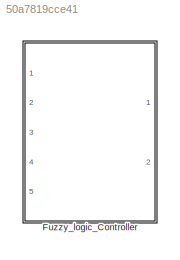
MODEL slx_50a7819cce41
KIND model
CONFIG AbsTol = auto
CONFIG FixedStep = auto
CONFIG MaxStep = auto
CONFIG MinStep = auto
CONFIG RelTol = 1e-3
CONFIG SampleTimeConstraint = Unconstrained
CONFIG Solver = ode45
CONFIG SolverMode = Auto
CONFIG SolverName = ode45
CONFIG StartTime = 0.0
CONFIG StopTime = 10.0
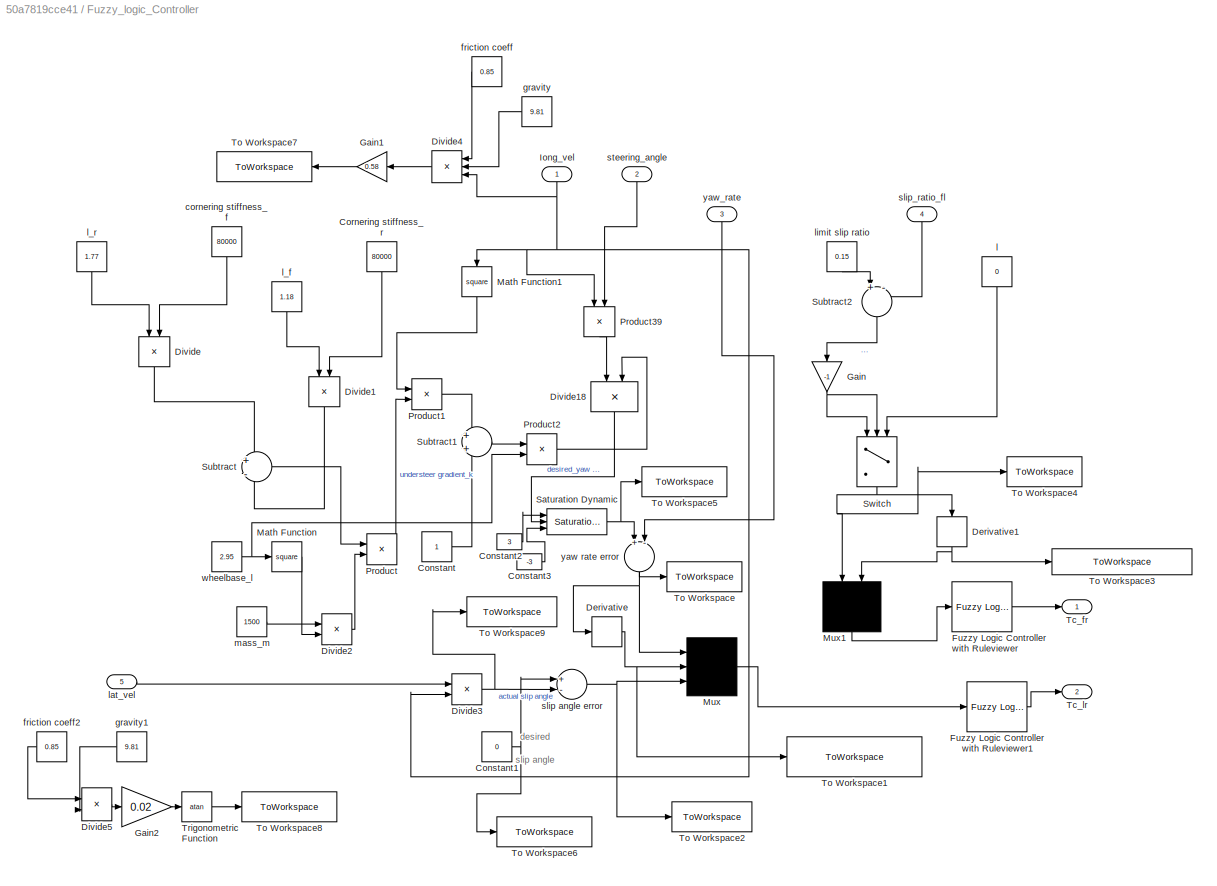
BLOCK [SubSystem] Fuzzy_logic_Controller
  Ports = [5, 2]
  RequestExecContextInheritance = off
BLOCK [Constant] Fuzzy_logic_Controller/Constant
BLOCK [Constant] Fuzzy_logic_Controller/Constant1
  Value = 0
BLOCK [Constant] Fuzzy_logic_Controller/Constant2
  Value = 3
BLOCK [Constant] Fuzzy_logic_Controller/Constant3
  Value = -3
BLOCK [Constant] Fuzzy_logic_Controller/Cornering stiffness_r 
  Value = 80000
BLOCK [Derivative] Fuzzy_logic_Controller/Derivative
BLOCK [Derivative] Fuzzy_logic_Controller/Derivative1
BLOCK [Product] Fuzzy_logic_Controller/Divide
  InputSameDT = off
  Inputs = */
  OutDataTypeStr = Inherit: Inherit via internal rule
  Ports = [2, 1]
  RndMeth = Floor
  SaturateOnIntegerOverflow = off
BLOCK [Product] Fuzzy_logic_Controller/Divide1
  InputSameDT = off
  Inputs = */
  OutDataTypeStr = Inherit: Inherit via internal rule
  Ports = [2, 1]
  RndMeth = Floor
  SaturateOnIntegerOverflow = off
BLOCK [Product] Fuzzy_logic_Controller/Divide18
  InputSameDT = off
  Inputs = */
  OutDataTypeStr = Inherit: Inherit via internal rule
  Ports = [2, 1]
  RndMeth = Floor
  SaturateOnIntegerOverflow = off
BLOCK [Product] Fuzzy_logic_Controller/Divide2
  InputSameDT = off
  Inputs = */
  OutDataTypeStr = Inherit: Inherit via internal rule
  Ports = [2, 1]
  RndMeth = Floor
  SaturateOnIntegerOverflow = off
BLOCK [Product] Fuzzy_logic_Controller/Divide3
  InputSameDT = off
  Inputs = */
  OutDataTypeStr = Inherit: Inherit via internal rule
  Ports = [2, 1]
  RndMeth = Floor
  SaturateOnIntegerOverflow = off
BLOCK [Product] Fuzzy_logic_Controller/Divide4
  InputSameDT = off
  Inputs = **/
  OutDataTypeStr = Inherit: Inherit via internal rule
  Ports = [3, 1]
  RndMeth = Floor
  SaturateOnIntegerOverflow = off
BLOCK [Product] Fuzzy_logic_Controller/Divide5
  InputSameDT = off
  Inputs = **
  OutDataTypeStr = Inherit: Inherit via internal rule
  Ports = [2, 1]
  RndMeth = Floor
  SaturateOnIntegerOverflow = off
BLOCK [Reference] Fuzzy_logic_Controller/Fuzzy Logic Controller with Ruleviewer  REF=fuzblock/Fuzzy Logic   (lib defined in mdl_858b3b3e7478)
Controller 
with Ruleviewer
  Ports = [1, 1]
  SourceBlock = fuzblock/Fuzzy Logic \nController \nwith Ruleviewer
  SourceType = FIS
  Ts = 2
  fismatrix = fuzzy_slip_ratio1
BLOCK [Reference] Fuzzy_logic_Controller/Fuzzy Logic Controller with Ruleviewer1  REF=fuzblock/Fuzzy Logic   (lib defined in mdl_858b3b3e7478)
Controller 
with Ruleviewer
  Ports = [1, 1]
  SourceBlock = fuzblock/Fuzzy Logic \nController \nwith Ruleviewer
  SourceType = FIS
  Ts = 2
  fismatrix = fuzzy_yaw_rate1
BLOCK [Gain] Fuzzy_logic_Controller/Gain
  Gain = -1
  OutDataTypeStr = Inherit: Inherit via internal rule
  ParamDataTypeStr = Inherit: Inherit via internal rule
  SaturateOnIntegerOverflow = off
BLOCK [Gain] Fuzzy_logic_Controller/Gain1
  Gain = 0.58
  OutDataTypeStr = Inherit: Inherit via internal rule
  ParamDataTypeStr = Inherit: Inherit via internal rule
  SaturateOnIntegerOverflow = off
BLOCK [Gain] Fuzzy_logic_Controller/Gain2
  Gain = 0.02
  OutDataTypeStr = Inherit: Inherit via internal rule
  ParamDataTypeStr = Inherit: Inherit via internal rule
  SaturateOnIntegerOverflow = off
BLOCK [Inport] Fuzzy_logic_Controller/Iong_vel
  IconDisplay = Port number
BLOCK [Math] Fuzzy_logic_Controller/Math Function
  Operator = square
  Ports = [1, 1]
BLOCK [Math] Fuzzy_logic_Controller/Math Function1
  Operator = square
  Ports = [1, 1]
BLOCK [Mux] Fuzzy_logic_Controller/Mux
  Inputs = 3
  Ports = [3, 1]
BLOCK [Mux] Fuzzy_logic_Controller/Mux1
  Inputs = 2
  Ports = [2, 1]
BLOCK [Product] Fuzzy_logic_Controller/Product
  InputSameDT = off
  OutDataTypeStr = Inherit: Inherit via internal rule
  Ports = [2, 1]
  RndMeth = Floor
  SaturateOnIntegerOverflow = off
BLOCK [Product] Fuzzy_logic_Controller/Product1
  InputSameDT = off
  OutDataTypeStr = Inherit: Inherit via internal rule
  Ports = [2, 1]
  RndMeth = Floor
  SaturateOnIntegerOverflow = off
BLOCK [Product] Fuzzy_logic_Controller/Product2
  InputSameDT = off
  OutDataTypeStr = Inherit: Inherit via internal rule
  Ports = [2, 1]
  RndMeth = Floor
  SaturateOnIntegerOverflow = off
BLOCK [Product] Fuzzy_logic_Controller/Product39
  InputSameDT = off
  OutDataTypeStr = Inherit: Inherit via internal rule
  Ports = [2, 1]
  RndMeth = Floor
  SaturateOnIntegerOverflow = off
BLOCK [Reference] Fuzzy_logic_Controller/Saturation Dynamic  REF=simulink/Discontinuities/Saturation
Dynamic
  DoSatur = off
  LockScale = off
  OutDataType = fixdt(1, 16)
  OutDataTypeStr = Inherit: Same as second input
  OutMax = 3
  OutMin = -3
  OutScaling = 2^-10
  OutputDataTypeScalingMode = Same as second input
  Ports = [3, 1]
  RndMeth = Floor
  SourceBlock = simulink/Discontinuities/Saturation\nDynamic
  SourceType = Saturation Dynamic
BLOCK [Sum] Fuzzy_logic_Controller/Subtract
  IconShape = round
  InputSameDT = off
  Inputs = +-
  OutDataTypeStr = Inherit: Inherit via internal rule
  Ports = [2, 1]
  SaturateOnIntegerOverflow = off
BLOCK [Sum] Fuzzy_logic_Controller/Subtract1
  IconShape = round
  InputSameDT = off
  OutDataTypeStr = Inherit: Inherit via internal rule
  Ports = [2, 1]
  SaturateOnIntegerOverflow = off
BLOCK [Sum] Fuzzy_logic_Controller/Subtract2
  IconShape = round
  InputSameDT = off
  Inputs = +-
  OutDataTypeStr = Inherit: Inherit via internal rule
  Ports = [2, 1]
  SaturateOnIntegerOverflow = off
BLOCK [Switch] Fuzzy_logic_Controller/Switch
  Criteria = u2 > Threshold
  InputSameDT = off
  SaturateOnIntegerOverflow = off
  Threshold = 0.15
BLOCK [Outport] Fuzzy_logic_Controller/Tc_fr
  IconDisplay = Port number
BLOCK [Outport] Fuzzy_logic_Controller/Tc_lr
  IconDisplay = Port number
  Port = 2
BLOCK [ToWorkspace] Fuzzy_logic_Controller/To Workspace
  FixptAsFi = on
  MaxDataPoints = inf
  Ports = [1]
  SampleTime = 1
  Save2DSignal = 3-D array (concatenate along third dimension)
  SaveFormat = Timeseries
  VariableName = error_yaw_rate
BLOCK [ToWorkspace] Fuzzy_logic_Controller/To Workspace1
  FixptAsFi = on
  MaxDataPoints = inf
  Ports = [1]
  SampleTime = 1
  Save2DSignal = 3-D array (concatenate along third dimension)
  SaveFormat = Timeseries
  VariableName = derivative_error_yaw_rate
BLOCK [ToWorkspace] Fuzzy_logic_Controller/To Workspace2
  FixptAsFi = on
  MaxDataPoints = inf
  Ports = [1]
  SampleTime = 1
  Save2DSignal = 3-D array (concatenate along third dimension)
  SaveFormat = Timeseries
  VariableName = error_slip_angle
BLOCK [ToWorkspace] Fuzzy_logic_Controller/To Workspace3
  FixptAsFi = on
  MaxDataPoints = inf
  Ports = [1]
  SampleTime = 1
  Save2DSignal = 3-D array (concatenate along third dimension)
  SaveFormat = Timeseries
  VariableName = derivative_error_slip_ratio
BLOCK [ToWorkspace] Fuzzy_logic_Controller/To Workspace4
  FixptAsFi = on
  MaxDataPoints = inf
  Ports = [1]
  SampleTime = 1
  Save2DSignal = 3-D array (concatenate along third dimension)
  SaveFormat = Timeseries
  VariableName = error_slip_ratio
BLOCK [ToWorkspace] Fuzzy_logic_Controller/To Workspace5
  FixptAsFi = on
  MaxDataPoints = inf
  Ports = [1]
  SampleTime = 1
  Save2DSignal = 3-D array (concatenate along third dimension)
  SaveFormat = Timeseries
  VariableName = desired_yaw_rate
BLOCK [ToWorkspace] Fuzzy_logic_Controller/To Workspace6
  FixptAsFi = on
  MaxDataPoints = inf
  Ports = [1]
  SampleTime = 1
  Save2DSignal = 3-D array (concatenate along third dimension)
  SaveFormat = Timeseries
  VariableName = desired_slip_angle
BLOCK [ToWorkspace] Fuzzy_logic_Controller/To Workspace7
  FixptAsFi = on
  MaxDataPoints = inf
  Ports = [1]
  SampleTime = 1
  Save2DSignal = 3-D array (concatenate along third dimension)
  SaveFormat = Timeseries
  VariableName = targeted_yaw_rate
BLOCK [ToWorkspace] Fuzzy_logic_Controller/To Workspace8
  FixptAsFi = on
  MaxDataPoints = inf
  Ports = [1]
  SampleTime = 1
  Save2DSignal = 3-D array (concatenate along third dimension)
  SaveFormat = Timeseries
  VariableName = targeted_slip_angle
BLOCK [ToWorkspace] Fuzzy_logic_Controller/To Workspace9
  FixptAsFi = on
  MaxDataPoints = inf
  Ports = [1]
  SampleTime = 1
  Save2DSignal = 3-D array (concatenate along third dimension)
  SaveFormat = Timeseries
  VariableName = vehicle_slip_angle
BLOCK [Trigonometry] Fuzzy_logic_Controller/Trigonometric Function
  Operator = atan
  Ports = [1, 1]
BLOCK [Constant] Fuzzy_logic_Controller/cornering stiffness_f 
  Value = 80000
BLOCK [Constant] Fuzzy_logic_Controller/friction coeff
  Value = 0.85
BLOCK [Constant] Fuzzy_logic_Controller/friction coeff2
  Value = 0.85
BLOCK [Constant] Fuzzy_logic_Controller/gravity
  Value = 9.81
BLOCK [Constant] Fuzzy_logic_Controller/gravity1
  Value = 9.81
BLOCK [Constant] Fuzzy_logic_Controller/l
  Value = 0
BLOCK [Constant] Fuzzy_logic_Controller/l_f 
  Value = 1.18
BLOCK [Constant] Fuzzy_logic_Controller/l_r 
  Value = 1.77
BLOCK [Inport] Fuzzy_logic_Controller/lat_vel
  IconDisplay = Port number
  Port = 5
BLOCK [Constant] Fuzzy_logic_Controller/limit slip ratio
  Value = 0.15
BLOCK [Constant] Fuzzy_logic_Controller/mass_m
  Value = 1500
BLOCK [Sum] Fuzzy_logic_Controller/slip angle error  
  InputSameDT = off
  Inputs = +-
  OutDataTypeStr = Inherit: Inherit via internal rule
  Ports = [2, 1]
  SaturateOnIntegerOverflow = off
BLOCK [Inport] Fuzzy_logic_Controller/slip_ratio_fl
  IconDisplay = Port number
  Port = 4
BLOCK [Inport] Fuzzy_logic_Controller/steering_angle
  IconDisplay = Port number
  Port = 2
BLOCK [Constant] Fuzzy_logic_Controller/wheelbase_l
  Value = 2.95
BLOCK [Sum] Fuzzy_logic_Controller/yaw rate error   
  InputSameDT = off
  Inputs = +-
  OutDataTypeStr = Inherit: Inherit via internal rule
  Ports = [2, 1]
  SaturateOnIntegerOverflow = off
BLOCK [Inport] Fuzzy_logic_Controller/yaw_rate
  IconDisplay = Port number
  Port = 3
ANNOTATION Fuzzy_logic_Controller: desired slip angle
NET Fuzzy_logic_Controller/Constant1:1 -> Fuzzy_logic_Controller/To Workspace6:1, Fuzzy_logic_Controller/slip angle error  :1
LINE Fuzzy_logic_Controller/Constant2:1 -> Fuzzy_logic_Controller/Saturation Dynamic:1
LINE Fuzzy_logic_Controller/Constant3:1 -> Fuzzy_logic_Controller/Saturation Dynamic:3
LINE Fuzzy_logic_Controller/Constant:1 -> Fuzzy_logic_Controller/Subtract1:2
LINE Fuzzy_logic_Controller/Cornering stiffness_r :1 -> Fuzzy_logic_Controller/Divide1:2
NET Fuzzy_logic_Controller/Derivative1:1 -> Fuzzy_logic_Controller/Mux1:2, Fuzzy_logic_Controller/To Workspace3:1
NET Fuzzy_logic_Controller/Derivative:1 -> Fuzzy_logic_Controller/Mux:2, Fuzzy_logic_Controller/To Workspace1:1
LINE Fuzzy_logic_Controller/Divide18:1 -> Fuzzy_logic_Controller/Saturation Dynamic:2
LINE Fuzzy_logic_Controller/Divide1:1 -> Fuzzy_logic_Controller/Subtract:2
LINE Fuzzy_logic_Controller/Divide2:1 -> Fuzzy_logic_Controller/Product:2
NET Fuzzy_logic_Controller/Divide3:1 -> Fuzzy_logic_Controller/To Workspace9:1, Fuzzy_logic_Controller/slip angle error  :2
LINE Fuzzy_logic_Controller/Divide4:1 -> Fuzzy_logic_Controller/Gain1:1
LINE Fuzzy_logic_Controller/Divide5:1 -> Fuzzy_logic_Controller/Gain2:1
LINE Fuzzy_logic_Controller/Divide:1 -> Fuzzy_logic_Controller/Subtract:1
LINE Fuzzy_logic_Controller/Fuzzy Logic Controller with Ruleviewer1:1 -> Fuzzy_logic_Controller/Tc_lr:1
LINE Fuzzy_logic_Controller/Fuzzy Logic Controller with Ruleviewer:1 -> Fuzzy_logic_Controller/Tc_fr:1
LINE Fuzzy_logic_Controller/Gain1:1 -> Fuzzy_logic_Controller/To Workspace7:1
LINE Fuzzy_logic_Controller/Gain2:1 -> Fuzzy_logic_Controller/Trigonometric Function:1
NET Fuzzy_logic_Controller/Gain:1 -> Fuzzy_logic_Controller/Switch:1, Fuzzy_logic_Controller/Switch:2
NET Fuzzy_logic_Controller/Iong_vel:1 -> Fuzzy_logic_Controller/Divide3:2, Fuzzy_logic_Controller/Divide4:3, Fuzzy_logic_Controller/Math Function1:1, Fuzzy_logic_Controller/Product39:1
LINE Fuzzy_logic_Controller/Math Function1:1 -> Fuzzy_logic_Controller/Product1:1
LINE Fuzzy_logic_Controller/Math Function:1 -> Fuzzy_logic_Controller/Divide2:2
LINE Fuzzy_logic_Controller/Mux1:1 -> Fuzzy_logic_Controller/Fuzzy Logic Controller with Ruleviewer:1
LINE Fuzzy_logic_Controller/Mux:1 -> Fuzzy_logic_Controller/Fuzzy Logic Controller with Ruleviewer1:1
LINE Fuzzy_logic_Controller/Product1:1 -> Fuzzy_logic_Controller/Subtract1:1
LINE Fuzzy_logic_Controller/Product2:1 -> Fuzzy_logic_Controller/Divide18:2
LINE Fuzzy_logic_Controller/Product39:1 -> Fuzzy_logic_Controller/Divide18:1
LINE Fuzzy_logic_Controller/Product:1 -> Fuzzy_logic_Controller/Product1:2
NET Fuzzy_logic_Controller/Saturation Dynamic:1 -> Fuzzy_logic_Controller/To Workspace5:1, Fuzzy_logic_Controller/yaw rate error   :1
LINE Fuzzy_logic_Controller/Subtract1:1 -> Fuzzy_logic_Controller/Product2:1
LINE Fuzzy_logic_Controller/Subtract2:1 -> Fuzzy_logic_Controller/Gain:1
LINE Fuzzy_logic_Controller/Subtract:1 -> Fuzzy_logic_Controller/Product:1
NET Fuzzy_logic_Controller/Switch:1 -> Fuzzy_logic_Controller/Derivative1:1, Fuzzy_logic_Controller/Mux1:1, Fuzzy_logic_Controller/To Workspace4:1
LINE Fuzzy_logic_Controller/Trigonometric Function:1 -> Fuzzy_logic_Controller/To Workspace8:1
LINE Fuzzy_logic_Controller/cornering stiffness_f :1 -> Fuzzy_logic_Controller/Divide:2
LINE Fuzzy_logic_Controller/friction coeff2:1 -> Fuzzy_logic_Controller/Divide5:1
LINE Fuzzy_logic_Controller/friction coeff:1 -> Fuzzy_logic_Controller/Divide4:1
LINE Fuzzy_logic_Controller/gravity1:1 -> Fuzzy_logic_Controller/Divide5:2
LINE Fuzzy_logic_Controller/gravity:1 -> Fuzzy_logic_Controller/Divide4:2
LINE Fuzzy_logic_Controller/l:1 -> Fuzzy_logic_Controller/Switch:3
LINE Fuzzy_logic_Controller/l_f :1 -> Fuzzy_logic_Controller/Divide1:1
LINE Fuzzy_logic_Controller/l_r :1 -> Fuzzy_logic_Controller/Divide:1
LINE Fuzzy_logic_Controller/lat_vel:1 -> Fuzzy_logic_Controller/Divide3:1
LINE Fuzzy_logic_Controller/limit slip ratio:1 -> Fuzzy_logic_Controller/Subtract2:1
LINE Fuzzy_logic_Controller/mass_m:1 -> Fuzzy_logic_Controller/Divide2:1
NET Fuzzy_logic_Controller/slip angle error  :1 -> Fuzzy_logic_Controller/Mux:3, Fuzzy_logic_Controller/To Workspace2:1
LINE Fuzzy_logic_Controller/slip_ratio_fl:1 -> Fuzzy_logic_Controller/Subtract2:2
LINE Fuzzy_logic_Controller/steering_angle:1 -> Fuzzy_logic_Controller/Product39:2
NET Fuzzy_logic_Controller/wheelbase_l:1 -> Fuzzy_logic_Controller/Math Function:1, Fuzzy_logic_Controller/Product2:2
NET Fuzzy_logic_Controller/yaw rate error   :1 -> Fuzzy_logic_Controller/Derivative:1, Fuzzy_logic_Controller/Mux:1, Fuzzy_logic_Controller/To Workspace:1
LINE Fuzzy_logic_Controller/yaw_rate:1 -> Fuzzy_logic_Controller/yaw rate error   :2
note: NET lines group one-source signal fan-out (src -> all destinations, sorted); 1:1 wires keep LINE
